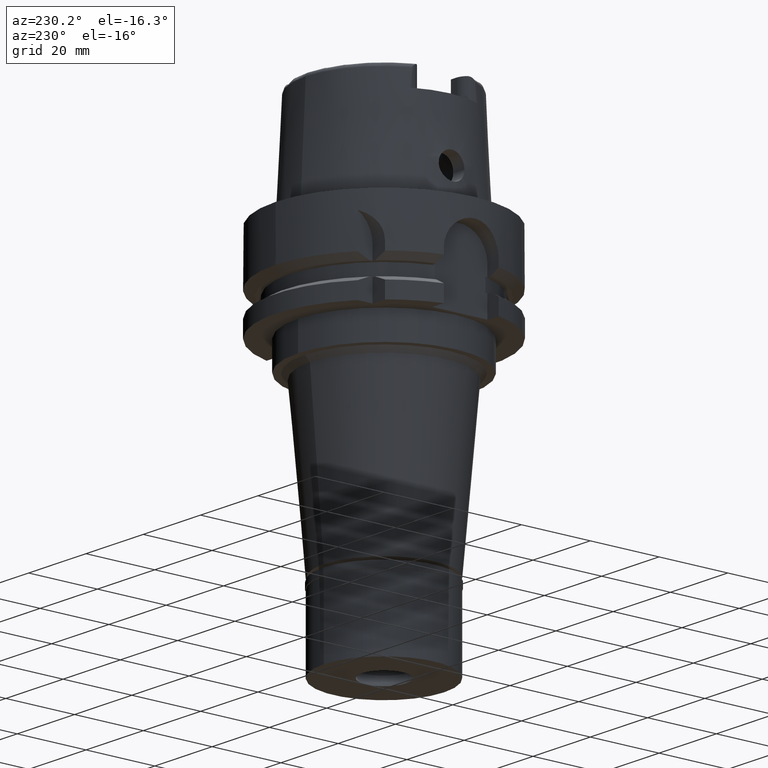
[diagram: clean part render]
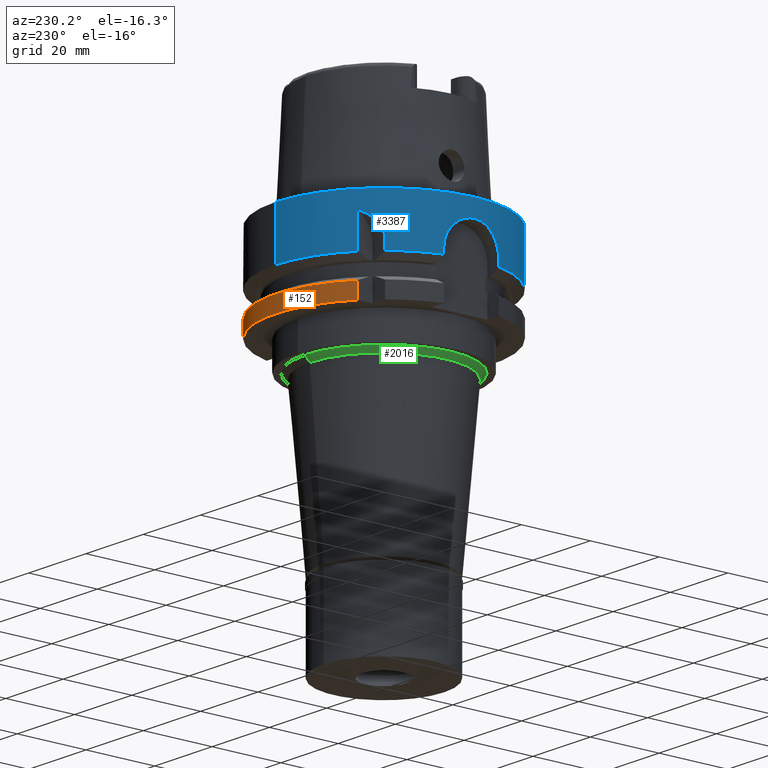
[diagram: same view with three faces highlighted in distinct colors, each labeled with its STEP entity id]
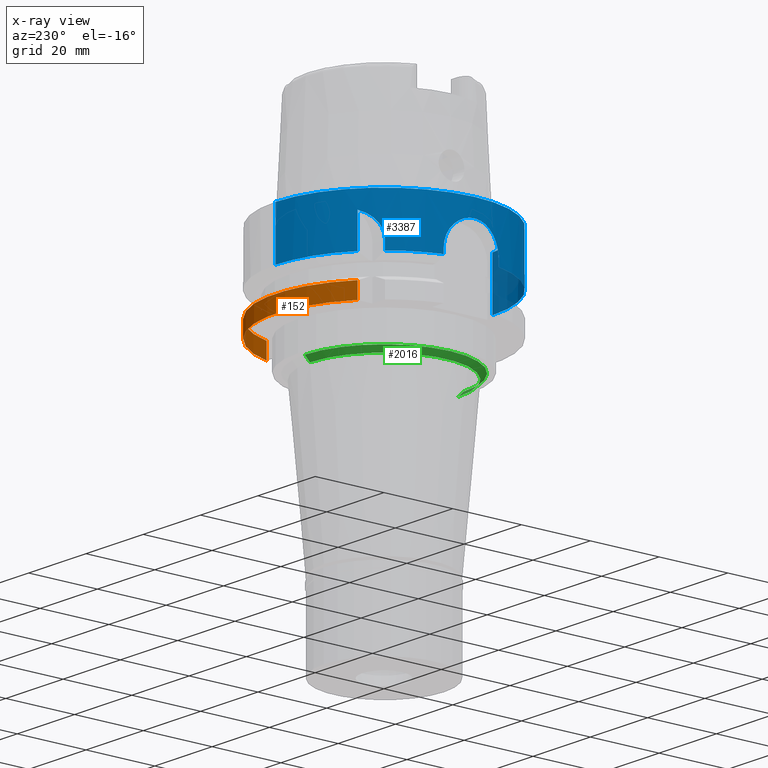
[diagram: x-ray of the same camera — body ghosted, the three highlighted faces saturated]
A machine part, auxiliary view with three faces highlighted in distinct colors.
The next image is the same camera in x-ray (body ghosted, the three faces saturated) — at least one of them is partly hidden behind the body in this view.
Their STEP definitions:

[orange] entity #152 — the highlighted cylindrical surface (partial cylindrical patch) has radius 31.5 mm, axis along (0, 0, 1).
#58 = EDGE_CURVE ( 'NONE', #61, #1139, #3639, .T. ) ;
#61 = VERTEX_POINT ( 'NONE', #4322 ) ;
#90 = CARTESIAN_POINT ( 'NONE',  ( -20.00001377820999693, 24.33617572402999940, -21.37754845249999747 ) ) ;
#152 = ADVANCED_FACE ( 'NONE', ( #1501 ), #3153, .T. ) ;
#477 = AXIS2_PLACEMENT_3D ( 'NONE', #2296, #3184, #3981 ) ;
#559 = CARTESIAN_POINT ( 'NONE',  ( -20.00000000000000000, 24.33618704727999926, -26.00000000000000000 ) ) ;
#766 = ORIENTED_EDGE ( 'NONE', *, *, #818, .T. ) ;
#818 = EDGE_CURVE ( 'NONE', #2027, #1139, #1994, .T. ) ;
#860 = CARTESIAN_POINT ( 'NONE',  ( -20.00000000000000000, 24.33618327286396621, -24.45918281749999679 ) ) ;
#937 = AXIS2_PLACEMENT_3D ( 'NONE', #3058, #1876, #3619 ) ;
#1070 = EDGE_CURVE ( 'NONE', #61, #4979, #1910, .T. ) ;
#1139 = VERTEX_POINT ( 'NONE', #1801 ) ;
#1501 = FACE_OUTER_BOUND ( 'NONE', #2887, .T. ) ;
#1590 = DIRECTION ( 'NONE',  ( -0.6349206349206079070, 0.7725773665802099233, 0.0000000000000000000 ) ) ;
#1801 = CARTESIAN_POINT ( 'NONE',  ( -20.00000000000000000, 24.33618704727999926, -26.00000000000000000 ) ) ;
#1876 = DIRECTION ( 'NONE',  ( 0.0000000000000000000, 0.0000000000000000000, 1.000000000000000000 ) ) ;
#1910 = CIRCLE ( 'NONE', #2600, 31.50000000000000711 ) ;
#1927 = CARTESIAN_POINT ( 'NONE',  ( 30.18691748977999723, 9.000000692501998856, -21.37750466033000052 ) ) ;
#1994 = CIRCLE ( 'NONE', #937, 31.50000000000000000 ) ;
#2027 = VERTEX_POINT ( 'NONE', #3061 ) ;
#2240 = ORIENTED_EDGE ( 'NONE', *, *, #58, .F. ) ;
#2296 = CARTESIAN_POINT ( 'NONE',  ( 0.0000000000000000000, 0.0000000000000000000, 0.0000000000000000000 ) ) ;
#2600 = AXIS2_PLACEMENT_3D ( 'NONE', #3225, #5393, #1590 ) ;
#2749 = ORIENTED_EDGE ( 'NONE', *, *, #4427, .F. ) ;
#2877 = DIRECTION ( 'NONE',  ( -4.466501118554943944E-08, 1.498112946369981561E-07, 0.9999999999999876765 ) ) ;
#2887 = EDGE_LOOP ( 'NONE', ( #3079, #2749, #766, #2240 ) ) ;
#3058 = CARTESIAN_POINT ( 'NONE',  ( 0.0000000000000000000, 0.0000000000000000000, -26.00000000000000000 ) ) ;
#3061 = CARTESIAN_POINT ( 'NONE',  ( 30.18691769625000276, 9.000000000000000000, -26.00000000000000000 ) ) ;
#3079 = ORIENTED_EDGE ( 'NONE', *, *, #1070, .T. ) ;
#3153 = CYLINDRICAL_SURFACE ( 'NONE', #477, 31.50000000000000000 ) ;
#3184 = DIRECTION ( 'NONE',  ( 0.0000000000000000000, 0.0000000000000000000, 1.000000000000000000 ) ) ;
#3225 = CARTESIAN_POINT ( 'NONE',  ( 0.0000000000000000000, 0.0000000000000000000, -21.37749907476000288 ) ) ;
#3619 = DIRECTION ( 'NONE',  ( 0.0000000000000000000, 1.000000000000000000, 0.0000000000000000000 ) ) ;
#3639 = B_SPLINE_CURVE_WITH_KNOTS ( 'NONE', 3,
 ( #90, #4736, #860, #559 ),
 .UNSPECIFIED., .F., .F.,
 ( 4, 4 ),
 ( 0.0000000000000000000, 1.000000000000000000 ),
 .UNSPECIFIED. ) ;
#3981 = DIRECTION ( 'NONE',  ( 0.0000000000000000000, 1.000000000000000000, 0.0000000000000000000 ) ) ;
#4038 = CARTESIAN_POINT ( 'NONE',  ( 30.18691769625000276, 9.000000000000000000, -26.00000000000000000 ) ) ;
#4117 = LINE ( 'NONE', #4038, #4134 ) ;
#4134 = VECTOR ( 'NONE', #2877, 1000.000000000000114 ) ;
#4322 = CARTESIAN_POINT ( 'NONE',  ( -20.00001377820999693, 24.33617572402999940, -21.37754845249999747 ) ) ;
#4427 = EDGE_CURVE ( 'NONE', #2027, #4979, #4117, .T. ) ;
#4736 = CARTESIAN_POINT ( 'NONE',  ( -20.00000000000000000, 24.33617949844698458, -22.91836563500000068 ) ) ;
#4979 = VERTEX_POINT ( 'NONE', #1927 ) ;
#5393 = DIRECTION ( 'NONE',  ( 0.0000000000000000000, 0.0000000000000000000, -1.000000000000000000 ) ) ;

[blue] entity #3387 — the highlighted cylindrical surface (partial cylindrical patch) has radius 31.5 mm, axis along (0, 0, 1).
#9 = CARTESIAN_POINT ( 'NONE',  ( 0.0000000000000000000, -31.50000000000000000, -14.62250092523999889 ) ) ;
#27 = CARTESIAN_POINT ( 'NONE',  ( -31.12245719726680093, -4.866787956074039023, -6.645079909400829266 ) ) ;
#37 = DIRECTION ( 'NONE',  ( -1.628700928634991865E-08, -6.202315639437978003E-08, -0.9999999999999980016 ) ) ;
#50 = AXIS2_PLACEMENT_3D ( 'NONE', #991, #2252, #5315 ) ;
#66 = VECTOR ( 'NONE', #4347, 1000.000000000000000 ) ;
#102 = EDGE_CURVE ( 'NONE', #1838, #2346, #4056, .T. ) ;
#173 = CARTESIAN_POINT ( 'NONE',  ( -20.00000000000000000, 24.33618704727999926, -5.000000000001000089 ) ) ;
#200 = CARTESIAN_POINT ( 'NONE',  ( -23.69378235062319149, 20.75730693223430734, -8.709620729066509526 ) ) ;
#238 = VERTEX_POINT ( 'NONE', #4540 ) ;
#281 = CARTESIAN_POINT ( 'NONE',  ( -22.42282341165946846, 22.12411074930098565, -6.681966651694929205 ) ) ;
#288 = EDGE_CURVE ( 'NONE', #2346, #4827, #5351, .T. ) ;
#306 = CARTESIAN_POINT ( 'NONE',  ( -31.44966182429120138, 1.798311609534588351, -5.200423058021766742 ) ) ;
#334 = CARTESIAN_POINT ( 'NONE',  ( -31.10597419837395705, 4.967807807777044005, -6.727903275435365593 ) ) ;
#366 = CARTESIAN_POINT ( 'NONE',  ( -30.66617587512583043, 7.202629446171626704, -9.478638014006163459 ) ) ;
#369 = VERTEX_POINT ( 'NONE', #3868 ) ;
#376 = CARTESIAN_POINT ( 'NONE',  ( -20.00000000000000000, 24.33618704727999926, -5.000000000001000089 ) ) ;
#385 = CARTESIAN_POINT ( 'NONE',  ( -31.30329634981656639, -3.522529521366312366, -5.812388975414772396 ) ) ;
#414 = CARTESIAN_POINT ( 'NONE',  ( -30.47046936434526287, 7.987562727870276547, -12.48389887869858228 ) ) ;
#439 = CARTESIAN_POINT ( 'NONE',  ( -31.20242024745796172, -4.321054262826401704, -6.266095709814027082 ) ) ;
#444 = VERTEX_POINT ( 'NONE', #4590 ) ;
#490 = CARTESIAN_POINT ( 'NONE',  ( -24.33618953147999875, 19.99999697720000214, -14.62251175989000096 ) ) ;
#502 = CARTESIAN_POINT ( 'NONE',  ( -24.23755181296511907, 20.11957536446044159, -10.72281759680524971 ) ) ;
#520 = ORIENTED_EDGE ( 'NONE', *, *, #3964, .T. ) ;
#528 = CARTESIAN_POINT ( 'NONE',  ( -30.51876164595472574, -7.801142564629041765, -11.20858455538009046 ) ) ;
#614 = CIRCLE ( 'NONE', #3427, 31.50000000000000000 ) ;
#674 = CARTESIAN_POINT ( 'NONE',  ( -22.13990552091419062, 22.40702674288545282, -6.391681059372950280 ) ) ;
#697 = EDGE_CURVE ( 'NONE', #5384, #1838, #2578, .T. ) ;
#746 = EDGE_CURVE ( 'NONE', #5384, #4592, #2693, .T. ) ;
#758 = CARTESIAN_POINT ( 'NONE',  ( -30.95339424955330898, 5.845829516478184829, -7.532370027206814811 ) ) ;
#783 = CARTESIAN_POINT ( 'NONE',  ( -31.49999289744041064, -0.2605192614558345388, -5.000026923804298917 ) ) ;
#809 = CARTESIAN_POINT ( 'NONE',  ( -31.32884444780465572, 3.281439838084335037, -5.702789551189129114 ) ) ;
#832 = CARTESIAN_POINT ( 'NONE',  ( -31.24778516539587159, 3.985035518564020496, -6.058131600150521656 ) ) ;
#856 = CARTESIAN_POINT ( 'NONE',  ( -30.72496487600236392, -6.945680446835005739, -9.021595561511116301 ) ) ;
#883 = CARTESIAN_POINT ( 'NONE',  ( 0.0000000000000000000, -31.50000000000000000, 0.0000000000000000000 ) ) ;
#978 = VERTEX_POINT ( 'NONE', #1104 ) ;
#991 = CARTESIAN_POINT ( 'NONE',  ( 0.0000000000000000000, 0.0000000000000000000, -14.62250092523999889 ) ) ;
#1010 = CIRCLE ( 'NONE', #3478, 31.50000000000000000 ) ;
#1015 = CARTESIAN_POINT ( 'NONE',  ( -20.00001377493000021, 24.33617572673000140, -14.62245154170999939 ) ) ;
#1025 = CARTESIAN_POINT ( 'NONE',  ( -24.33618953147999875, 19.99999697720000214, -14.62251175989000096 ) ) ;
#1031 = CARTESIAN_POINT ( 'NONE',  ( -22.11654899248160788, 22.43007941135832795, -6.369228008395599439 ) ) ;
#1046 = FACE_OUTER_BOUND ( 'NONE', #1921, .T. ) ;
#1091 = CARTESIAN_POINT ( 'NONE',  ( -22.22049073799695407, 22.32720105525508458, -6.470536368740974709 ) ) ;
#1104 = CARTESIAN_POINT ( 'NONE',  ( -30.46719534836999799, -8.000000475258000066, -14.62249661090999986 ) ) ;
#1167 = CARTESIAN_POINT ( 'NONE',  ( -30.57233659845883977, 7.588686656457142021, -10.45426432969273378 ) ) ;
#1193 = CARTESIAN_POINT ( 'NONE',  ( -31.37653858702547893, 2.796769158684890400, -5.500265141537504121 ) ) ;
#1218 = CARTESIAN_POINT ( 'NONE',  ( -31.39671527135514495, -2.551756247920768494, -5.416712190212658484 ) ) ;
#1240 = CARTESIAN_POINT ( 'NONE',  ( -31.21806995169349008, 4.210859599592639668, -6.192815206136389250 ) ) ;
#1256 = DIRECTION ( 'NONE',  ( 9.894060569838856819E-07, 1.203919407603981730E-06, 0.9999999999987858601 ) ) ;
#1264 = CARTESIAN_POINT ( 'NONE',  ( -30.91893244297369137, 6.024849328295651674, -7.730129281958026510 ) ) ;
#1291 = CARTESIAN_POINT ( 'NONE',  ( -31.05571320556486725, -5.275949611093288638, -6.980403696092781551 ) ) ;
#1295 = CARTESIAN_POINT ( 'NONE',  ( -24.33618704727999926, 20.00000000000000000, -12.11171390365999834 ) ) ;
#1343 = EDGE_CURVE ( 'NONE', #4013, #444, #3256, .T. ) ;
#1348 = CARTESIAN_POINT ( 'NONE',  ( -30.46719547316396870, -8.000000000001023182, -12.48317006934387585 ) ) ;
#1410 = EDGE_CURVE ( 'NONE', #5247, #3741, #3483, .T. ) ;
#1422 = CYLINDRICAL_SURFACE ( 'NONE', #4391, 31.50000000000000000 ) ;
#1435 = CARTESIAN_POINT ( 'NONE',  ( -20.81481333261101341, 23.66655599043625813, -5.344980545176353459 ) ) ;
#1450 = DIRECTION ( 'NONE',  ( 0.0000000000000000000, 0.0000000000000000000, 1.000000000000000000 ) ) ;
#1458 = VECTOR ( 'NONE', #1256, 1000.000000000000000 ) ;
#1528 = DIRECTION ( 'NONE',  ( 0.0000000000000000000, 0.0000000000000000000, 1.000000000000000000 ) ) ;
#1631 = CARTESIAN_POINT ( 'NONE',  ( -30.46719547316000032, 8.000000000000000000, -13.00000000000000000 ) ) ;
#1656 = CARTESIAN_POINT ( 'NONE',  ( -30.46719547316398646, 8.000000000001037392, -12.74141169851611721 ) ) ;
#1711 = CARTESIAN_POINT ( 'NONE',  ( -30.91857318719439363, -6.036445372316029179, -7.723293636608659085 ) ) ;
#1741 = CARTESIAN_POINT ( 'NONE',  ( -30.48036059509011508, -7.950356523976275902, -11.97071246685688806 ) ) ;
#1751 = CARTESIAN_POINT ( 'NONE',  ( -30.46719547316000032, 8.000000000000000000, -13.00000000000000000 ) ) ;
#1774 = CARTESIAN_POINT ( 'NONE',  ( -24.14684262426480998, 20.22822477512563921, -10.21398258185091024 ) ) ;
#1816 = EDGE_CURVE ( 'NONE', #978, #444, #3779, .T. ) ;
#1838 = VERTEX_POINT ( 'NONE', #4974 ) ;
#1857 = CARTESIAN_POINT ( 'NONE',  ( 0.0000000000000000000, 31.50000000000000000, 0.0000000000000000000 ) ) ;
#1885 = CARTESIAN_POINT ( 'NONE',  ( -23.53685168013636542, 20.93493527650296571, -8.356951744155907136 ) ) ;
#1921 = EDGE_LOOP ( 'NONE', ( #3816, #5021, #4092, #2253, #2187, #3173, #520, #3240, #2323, #3126, #2912, #2349 ) ) ;
#1958 = EDGE_CURVE ( 'NONE', #238, #4827, #1010, .T. ) ;
#1969 = CARTESIAN_POINT ( 'NONE',  ( -23.93461104867942524, 20.47968988056373263, -9.360297831436831473 ) ) ;
#1974 = DIRECTION ( 'NONE',  ( -0.9672125547036138915, -0.2539682539683034701, 0.0000000000000000000 ) ) ;
#1996 = CARTESIAN_POINT ( 'NONE',  ( -31.48718059661122837, 1.033475740137585586, -5.050046565198228699 ) ) ;
#2022 = CARTESIAN_POINT ( 'NONE',  ( -31.48408245245744297, -1.033846574554016629, -5.062798261228511620 ) ) ;
#2049 = CARTESIAN_POINT ( 'NONE',  ( -31.49677512529969903, -0.5190792994887473144, -5.012591775769399405 ) ) ;
#2073 = CARTESIAN_POINT ( 'NONE',  ( -30.51893315439571808, 7.800474451156758526, -11.20536184592949347 ) ) ;
#2100 = CARTESIAN_POINT ( 'NONE',  ( -31.17125852457936475, 4.540368874102139962, -6.412031945349154327 ) ) ;
#2129 = CARTESIAN_POINT ( 'NONE',  ( -30.85032145203767939, -6.371615249534635872, -8.133429115957653721 ) ) ;
#2183 = CARTESIAN_POINT ( 'NONE',  ( -24.19527956968729754, 20.17031545704069018, -10.46745987686011503 ) ) ;
#2187 = ORIENTED_EDGE ( 'NONE', *, *, #1343, .T. ) ;
#2203 = DIRECTION ( 'NONE',  ( 0.0000000000000000000, 0.0000000000000000000, 1.000000000000000000 ) ) ;
#2252 = DIRECTION ( 'NONE',  ( 0.0000000000000000000, 0.0000000000000000000, 1.000000000000000000 ) ) ;
#2253 = ORIENTED_EDGE ( 'NONE', *, *, #3687, .F. ) ;
#2323 = ORIENTED_EDGE ( 'NONE', *, *, #5092, .T. ) ;
#2346 = VERTEX_POINT ( 'NONE', #376 ) ;
#2349 = ORIENTED_EDGE ( 'NONE', *, *, #288, .F. ) ;
#2366 = CARTESIAN_POINT ( 'NONE',  ( -21.51725636792768270, 23.02046004033381621, -5.798395461353816671 ) ) ;
#2389 = CARTESIAN_POINT ( 'NONE',  ( -30.72362680542135038, 6.956926099389389329, -9.014865801447337290 ) ) ;
#2398 = DIRECTION ( 'NONE',  ( 0.0000000000000000000, 0.0000000000000000000, -1.000000000000000000 ) ) ;
#2416 = CARTESIAN_POINT ( 'NONE',  ( -31.28953998201770048, 3.637077696510422786, -5.873297521405675958 ) ) ;
#2426 = CIRCLE ( 'NONE', #2890, 31.50000000000000000 ) ;
#2446 = CARTESIAN_POINT ( 'NONE',  ( -31.42616278188021539, -2.180628401364822277, -5.295126509332736653 ) ) ;
#2472 = CARTESIAN_POINT ( 'NONE',  ( -30.46719534836999799, -8.000000475258000066, -14.62249661090999986 ) ) ;
#2477 = CARTESIAN_POINT ( 'NONE',  ( -31.32926175612021069, -3.284441417846847511, -5.700583273905581727 ) ) ;
#2488 = DIRECTION ( 'NONE',  ( 0.0000000000000000000, -1.000000000000000000, 0.0000000000000000000 ) ) ;
#2536 = CARTESIAN_POINT ( 'NONE',  ( -31.24713681681722832, -3.984897501304583312, -6.061802170373098875 ) ) ;
#2559 = DIRECTION ( 'NONE',  ( 0.0000000000000000000, -2.672583210395999918E-14, -1.000000000000000000 ) ) ;
#2578 = LINE ( 'NONE', #490, #1458 ) ;
#2592 = CARTESIAN_POINT ( 'NONE',  ( -24.31739938360097497, 20.02303739605130772, -11.41221535958003663 ) ) ;
#2618 = CARTESIAN_POINT ( 'NONE',  ( -30.57222014968889923, -7.589155089353680772, -10.45566941638133507 ) ) ;
#2647 = CARTESIAN_POINT ( 'NONE',  ( 0.0000000000000000000, -31.50000000000000000, 0.0000000000000000000 ) ) ;
#2693 = CIRCLE ( 'NONE', #50, 31.50000000000000711 ) ;
#2716 = CARTESIAN_POINT ( 'NONE',  ( -23.42282105971236561, 21.06232378565220387, -8.128107010674932909 ) ) ;
#2746 = CARTESIAN_POINT ( 'NONE',  ( -22.12365065708123524, 22.42307461635802213, -6.376033572625946277 ) ) ;
#2773 = CARTESIAN_POINT ( 'NONE',  ( -23.75772248649901641, 20.68403774231243375, -8.870103976812400148 ) ) ;
#2852 = CARTESIAN_POINT ( 'NONE',  ( -30.85175633428337960, 6.359899679385018878, -8.139651759944456444 ) ) ;
#2879 = CARTESIAN_POINT ( 'NONE',  ( -20.00000000000000000, 24.33618704727589588, 0.0000000000000000000 ) ) ;
#2890 = AXIS2_PLACEMENT_3D ( 'NONE', #4600, #1528, #1974 ) ;
#2905 = CARTESIAN_POINT ( 'NONE',  ( -31.37578633306639020, -2.797359783995034821, -5.503888911969250231 ) ) ;
#2912 = ORIENTED_EDGE ( 'NONE', *, *, #1958, .T. ) ;
#2930 = CARTESIAN_POINT ( 'NONE',  ( -31.05592043737171437, 5.274730966343901706, -6.979333167998830412 ) ) ;
#2956 = CARTESIAN_POINT ( 'NONE',  ( -31.43404276894120386, 2.052659527317886035, -5.263366927176994281 ) ) ;
#2976 = CARTESIAN_POINT ( 'NONE',  ( 0.0000000000000000000, 0.0000000000000000000, -14.62250092523999889 ) ) ;
#2980 = CARTESIAN_POINT ( 'NONE',  ( -31.15515541103103203, -4.653648920961162005, -6.487460649499388943 ) ) ;
#2981 = CARTESIAN_POINT ( 'NONE',  ( -30.53478168034419582, -7.738412471884907440, -10.95403629003705070 ) ) ;
#2990 = LINE ( 'NONE', #1751, #3508 ) ;
#3009 = CARTESIAN_POINT ( 'NONE',  ( -24.33618704728000637, 20.00000000000000711, -11.76143503008205471 ) ) ;
#3029 = VECTOR ( 'NONE', #3755, 1000.000000000000227 ) ;
#3042 = CARTESIAN_POINT ( 'NONE',  ( -24.26103639256389144, 20.09123961569170191, -10.89441491282532226 ) ) ;
#3066 = CARTESIAN_POINT ( 'NONE',  ( -30.46719547316000032, -8.000000000000000000, -13.00000000000000000 ) ) ;
#3098 = CARTESIAN_POINT ( 'NONE',  ( -24.03262762953693965, 20.36408952883833834, -9.698778667879587090 ) ) ;
#3122 = CARTESIAN_POINT ( 'NONE',  ( -23.47110503767037315, 21.00852691522635141, -8.222930559040365850 ) ) ;
#3126 = ORIENTED_EDGE ( 'NONE', *, *, #4254, .T. ) ;
#3173 = ORIENTED_EDGE ( 'NONE', *, *, #1816, .F. ) ;
#3211 = CARTESIAN_POINT ( 'NONE',  ( -23.59040622408590693, 20.87450958103633525, -8.473706688181136926 ) ) ;
#3240 = ORIENTED_EDGE ( 'NONE', *, *, #1410, .F. ) ;
#3256 = B_SPLINE_CURVE_WITH_KNOTS ( 'NONE', 3,
 ( #1631, #1656, #414, #3264, #5005, #2073, #3368, #1167, #3347, #366, #2389, #4570, #2852, #1264, #758, #4173, #2930, #334, #3294, #4090, #2100, #1240, #832, #2416, #5061, #809, #4626, #1193, #4120, #2956, #306, #1996, #5378, #783, #2049, #2022, #3715, #5407, #2446, #1218, #2905, #4599, #2477, #385, #3760, #2536, #3396, #439, #2980, #27, #1291, #3811, #1711, #2129, #5095, #856, #4228, #4790, #4318, #2618, #2981, #528, #1741, #1348, #3066 ),
 .UNSPECIFIED., .F., .F.,
 ( 4, 2, 2, 2, 2, 2, 2, 2, 2, 2, 2, 2, 2, 2, 2, 2, 2, 2, 2, 1, 2, 2, 2, 2, 2, 2, 2, 2, 2, 2, 2, 2, 4 ),
 ( 0.0000000000000000000, 0.03124999999999997224, 0.06249999999999994449, 0.09374999999999991673, 0.1249999999999998890, 0.1874999999999998057, 0.2187499999999998890, 0.2500000000000000000, 0.2812500000000000555, 0.2968750000000001110, 0.3125000000000001665, 0.3437500000000002220, 0.3593750000000002220, 0.3750000000000002220, 0.4062500000000001665, 0.4375000000000001665, 0.5000000000000001110, 0.5312500000000001110, 0.5625000000000000000, 0.5937500000000000000, 0.6093750000000000000, 0.6250000000000000000, 0.6562499999999998890, 0.6718749999999998890, 0.6874999999999997780, 0.7187499999999997780, 0.7499999999999997780, 0.8124999999999998890, 0.8437499999999998890, 0.8749999999999998890, 0.9062499999999998890, 0.9374999999999997780, 1.000000000000000000 ),
 .UNSPECIFIED. ) ;
#3264 = CARTESIAN_POINT ( 'NONE',  ( -30.48347349200445677, 7.937789709826467366, -11.97102420239621168 ) ) ;
#3288 = VECTOR ( 'NONE', #2559, 1000.000000000000000 ) ;
#3294 = CARTESIAN_POINT ( 'NONE',  ( -31.12248983947012348, 4.863358306369471862, -6.646602164951598724 ) ) ;
#3312 = VECTOR ( 'NONE', #3686, 1000.000000000000000 ) ;
#3347 = CARTESIAN_POINT ( 'NONE',  ( -30.59375289132900022, 7.502188844600671480, -10.20961931647805798 ) ) ;
#3368 = CARTESIAN_POINT ( 'NONE',  ( -30.53486720067081350, 7.738075684351631622, -10.95273669261678151 ) ) ;
#3387 = ADVANCED_FACE ( 'NONE', ( #1046 ), #1422, .T. ) ;
#3396 = CARTESIAN_POINT ( 'NONE',  ( -31.21750923799495681, -4.210710666917980127, -6.196542798051132728 ) ) ;
#3427 = AXIS2_PLACEMENT_3D ( 'NONE', #3723, #2398, #2488 ) ;
#3458 = CARTESIAN_POINT ( 'NONE',  ( -24.12922918956571294, 20.24921916685458001, -10.12997961463642227 ) ) ;
#3478 = AXIS2_PLACEMENT_3D ( 'NONE', #2976, #2203, #4674 ) ;
#3483 = LINE ( 'NONE', #2647, #3288 ) ;
#3508 = VECTOR ( 'NONE', #37, 1000.000000000000000 ) ;
#3575 = CARTESIAN_POINT ( 'NONE',  ( -23.41383396518895310, 21.07231654906985696, -8.110744566082036755 ) ) ;
#3604 = CARTESIAN_POINT ( 'NONE',  ( -22.33116271090877802, 22.21675606967029282, -6.582853157691396895 ) ) ;
#3658 = CARTESIAN_POINT ( 'NONE',  ( -22.16422112936536593, 22.38299474293508240, -6.415212143697866409 ) ) ;
#3686 = DIRECTION ( 'NONE',  ( -0.0000000000000000000, -0.0000000000000000000, -1.000000000000000000 ) ) ;
#3687 = EDGE_CURVE ( 'NONE', #4013, #4592, #2990, .T. ) ;
#3715 = CARTESIAN_POINT ( 'NONE',  ( -31.47467719722998325, -1.288635796012105095, -5.100160804244280754 ) ) ;
#3723 = CARTESIAN_POINT ( 'NONE',  ( 0.0000000000000000000, 0.0000000000000000000, 0.0000000000000000000 ) ) ;
#3741 = VERTEX_POINT ( 'NONE', #9 ) ;
#3755 = DIRECTION ( 'NONE',  ( -7.691239816547649744E-08, 2.929173976247864697E-07, 0.9999999999999540368 ) ) ;
#3760 = CARTESIAN_POINT ( 'NONE',  ( -31.26152930267402041, -3.870456020469371428, -5.997298722305189678 ) ) ;
#3779 = LINE ( 'NONE', #2472, #3029 ) ;
#3811 = CARTESIAN_POINT ( 'NONE',  ( -31.02184472236075408, -5.471001753605185591, -7.157136256373180849 ) ) ;
#3816 = ORIENTED_EDGE ( 'NONE', *, *, #102, .F. ) ;
#3868 = CARTESIAN_POINT ( 'NONE',  ( 0.0000000000000000000, 31.50000000000000000, 0.0000000000000000000 ) ) ;
#3872 = CARTESIAN_POINT ( 'NONE',  ( -24.17238210457848524, 20.19774409071592558, -10.34029033770483963 ) ) ;
#3940 = CARTESIAN_POINT ( 'NONE',  ( -30.46719549959000162, 7.999999899367999490, -14.62250183877000076 ) ) ;
#3952 = CARTESIAN_POINT ( 'NONE',  ( -23.23273074194696974, 21.27338265816705132, -7.764950729943016938 ) ) ;
#3964 = EDGE_CURVE ( 'NONE', #978, #3741, #2426, .T. ) ;
#4013 = VERTEX_POINT ( 'NONE', #4521 ) ;
#4056 = B_SPLINE_CURVE_WITH_KNOTS ( 'NONE', 3,
 ( #1295, #3009, #2592, #3042, #502, #2183, #3872, #1774, #3458, #4066, #3098, #1969, #2773, #200, #3211, #1885, #3122, #5299, #2716, #3575, #3952, #5271, #4846, #4490, #281, #3604, #1091, #3658, #674, #2746, #1031, #2366, #1435, #173 ),
 .UNSPECIFIED., .F., .F.,
 ( 4, 2, 2, 1, 2, 2, 2, 2, 1, 1, 2, 2, 2, 2, 1, 1, 1, 2, 2, 4 ),
 ( 0.0000000000000000000, 0.1249999999999981404, 0.1874999999999975853, 0.2187499999999971134, 0.2343749999999968636, 0.2499999999999966138, 0.3749999999999957256, 0.4374999999999951705, 0.4687499999999948930, 0.4843749999999952260, 0.4921874999999951150, 0.4999999999999950040, 0.6249999999999942268, 0.6874999999999938938, 0.7187499999999938938, 0.7343749999999937828, 0.7421874999999940048, 0.7460937499999945599, 0.7499999999999951150, 1.000000000000000000 ),
 .UNSPECIFIED. ) ;
#4066 = CARTESIAN_POINT ( 'NONE',  ( -24.12049851483102003, 20.25961390236335902, -10.08972362107126841 ) ) ;
#4090 = CARTESIAN_POINT ( 'NONE',  ( -31.15505701797506788, 4.650166666989047570, -6.489017651392170905 ) ) ;
#4092 = ORIENTED_EDGE ( 'NONE', *, *, #746, .T. ) ;
#4120 = CARTESIAN_POINT ( 'NONE',  ( -31.39751750560794363, 2.551146883218541994, -5.413142201694192579 ) ) ;
#4173 = CARTESIAN_POINT ( 'NONE',  ( -31.02187808113702872, 5.470778612142692232, -7.156988511190683688 ) ) ;
#4228 = CARTESIAN_POINT ( 'NONE',  ( -30.66829496329702565, -7.191774992679877521, -9.485896381865396521 ) ) ;
#4254 = EDGE_CURVE ( 'NONE', #369, #238, #5298, .T. ) ;
#4318 = CARTESIAN_POINT ( 'NONE',  ( -30.59373723261226985, -7.502244466330298955, -10.20989398916889535 ) ) ;
#4347 = DIRECTION ( 'NONE',  ( 0.0000000000000000000, 2.672583210395999918E-14, -1.000000000000000000 ) ) ;
#4391 = AXIS2_PLACEMENT_3D ( 'NONE', #4803, #1450, #4989 ) ;
#4490 = CARTESIAN_POINT ( 'NONE',  ( -22.60187682607207194, 21.94168555301713397, -6.883928054154604403 ) ) ;
#4521 = CARTESIAN_POINT ( 'NONE',  ( -30.46719547316000032, 8.000000000000000000, -13.00000000000000000 ) ) ;
#4540 = CARTESIAN_POINT ( 'NONE',  ( 0.0000000000000000000, 31.50000000000000000, -14.62250092523999889 ) ) ;
#4570 = CARTESIAN_POINT ( 'NONE',  ( -30.81885551309213511, 6.516951823586189185, -8.352437154013387044 ) ) ;
#4590 = CARTESIAN_POINT ( 'NONE',  ( -30.46719547316000032, -8.000000000000000000, -13.00000000000000000 ) ) ;
#4592 = VERTEX_POINT ( 'NONE', #3940 ) ;
#4599 = CARTESIAN_POINT ( 'NONE',  ( -31.36478212464035309, -2.918131538593208063, -5.550075916268425225 ) ) ;
#4600 = CARTESIAN_POINT ( 'NONE',  ( 0.0000000000000000000, 0.0000000000000000000, -14.62250092523999889 ) ) ;
#4626 = CARTESIAN_POINT ( 'NONE',  ( -31.34136359326490506, 3.159699506644057632, -5.649302505179529810 ) ) ;
#4674 = DIRECTION ( 'NONE',  ( 0.0000000000000000000, 1.000000000000000000, 0.0000000000000000000 ) ) ;
#4790 = CARTESIAN_POINT ( 'NONE',  ( -30.64173994537016910, -7.303711591445617657, -9.725159153974843207 ) ) ;
#4803 = CARTESIAN_POINT ( 'NONE',  ( 0.0000000000000000000, 0.0000000000000000000, 0.0000000000000000000 ) ) ;
#4827 = VERTEX_POINT ( 'NONE', #1015 ) ;
#4846 = CARTESIAN_POINT ( 'NONE',  ( -22.71555511956211859, 21.82388934614423803, -7.023550805667640340 ) ) ;
#4974 = CARTESIAN_POINT ( 'NONE',  ( -24.33618704727999926, 20.00000000000000000, -12.11171390365999834 ) ) ;
#4989 = DIRECTION ( 'NONE',  ( 0.0000000000000000000, 1.000000000000000000, 0.0000000000000000000 ) ) ;
#5005 = CARTESIAN_POINT ( 'NONE',  ( -30.49311663444910181, 7.900792394659328366, -11.71739009625630601 ) ) ;
#5021 = ORIENTED_EDGE ( 'NONE', *, *, #697, .F. ) ;
#5061 = CARTESIAN_POINT ( 'NONE',  ( -31.30298826463103623, 3.519555021601332712, -5.814551383529719786 ) ) ;
#5092 = EDGE_CURVE ( 'NONE', #5247, #369, #614, .T. ) ;
#5095 = CARTESIAN_POINT ( 'NONE',  ( -30.75521212177036290, -6.810975039628981875, -8.795221607784704076 ) ) ;
#5247 = VERTEX_POINT ( 'NONE', #883 ) ;
#5271 = CARTESIAN_POINT ( 'NONE',  ( -23.03951805167712052, 21.48332356735406989, -7.456833201218234564 ) ) ;
#5298 = LINE ( 'NONE', #1857, #66 ) ;
#5299 = CARTESIAN_POINT ( 'NONE',  ( -23.44222797492961519, 21.04071874343883763, -8.165971955047327313 ) ) ;
#5315 = DIRECTION ( 'NONE',  ( -0.7725773665802099233, 0.6349206349206079070, 0.0000000000000000000 ) ) ;
#5351 = LINE ( 'NONE', #2879, #3312 ) ;
#5378 = CARTESIAN_POINT ( 'NONE',  ( -31.50001416988314062, 0.5184579006104341747, -4.999947540202382079 ) ) ;
#5384 = VERTEX_POINT ( 'NONE', #1025 ) ;
#5407 = CARTESIAN_POINT ( 'NONE',  ( -31.44949749568556996, -1.801386730677229986, -5.201079033717721067 ) ) ;

[green] entity #2016 — the highlighted conical surface has half-angle 45 deg.
#26 = EDGE_CURVE ( 'NONE', #1950, #5068, #390, .T. ) ;
#57 = DIRECTION ( 'NONE',  ( 0.0000000000000000000, -1.000000000000000000, 0.0000000000000000000 ) ) ;
#80 = DIRECTION ( 'NONE',  ( 0.0000000000000000000, 0.0000000000000000000, 1.000000000000000000 ) ) ;
#390 = CIRCLE ( 'NONE', #922, 23.04197625490000334 ) ;
#443 = DIRECTION ( 'NONE',  ( 0.0000000000000000000, -0.7071067811866975639, -0.7071067811863974706 ) ) ;
#464 = CARTESIAN_POINT ( 'NONE',  ( 0.0000000000000000000, -21.54197625489999979, -35.50000000000000000 ) ) ;
#522 = FACE_OUTER_BOUND ( 'NONE', #3962, .T. ) ;
#728 = ORIENTED_EDGE ( 'NONE', *, *, #26, .T. ) ;
#750 = AXIS2_PLACEMENT_3D ( 'NONE', #1705, #80, #5174 ) ;
#904 = EDGE_CURVE ( 'NONE', #5068, #2595, #3914, .T. ) ;
#922 = AXIS2_PLACEMENT_3D ( 'NONE', #3844, #2210, #57 ) ;
#1030 = DIRECTION ( 'NONE',  ( 0.0000000000000000000, 0.7071067811866975639, -0.7071067811863974706 ) ) ;
#1705 = CARTESIAN_POINT ( 'NONE',  ( 0.0000000000000000000, 0.0000000000000000000, -34.75000000000000000 ) ) ;
#1748 = ORIENTED_EDGE ( 'NONE', *, *, #904, .T. ) ;
#1899 = DIRECTION ( 'NONE',  ( 0.0000000000000000000, -1.000000000000000000, 0.0000000000000000000 ) ) ;
#1950 = VERTEX_POINT ( 'NONE', #3891 ) ;
#2016 = ADVANCED_FACE ( 'NONE', ( #522 ), #4980, .T. ) ;
#2210 = DIRECTION ( 'NONE',  ( 0.0000000000000000000, 0.0000000000000000000, -1.000000000000000000 ) ) ;
#2431 = VECTOR ( 'NONE', #1030, 1000.000000000000114 ) ;
#2595 = VERTEX_POINT ( 'NONE', #3742 ) ;
#2700 = DIRECTION ( 'NONE',  ( 0.0000000000000000000, 0.0000000000000000000, -1.000000000000000000 ) ) ;
#2787 = CARTESIAN_POINT ( 'NONE',  ( 0.0000000000000000000, 23.04197625490000334, -34.00000000000000000 ) ) ;
#3048 = VECTOR ( 'NONE', #443, 1000.000000000000114 ) ;
#3222 = CARTESIAN_POINT ( 'NONE',  ( 0.0000000000000000000, 0.0000000000000000000, -35.50000000000000000 ) ) ;
#3304 = CARTESIAN_POINT ( 'NONE',  ( 0.0000000000000000000, 23.04197625490000334, -34.00000000000000000 ) ) ;
#3439 = AXIS2_PLACEMENT_3D ( 'NONE', #3222, #2700, #1899 ) ;
#3512 = LINE ( 'NONE', #4762, #2431 ) ;
#3742 = CARTESIAN_POINT ( 'NONE',  ( 0.0000000000000000000, 21.54197625489999979, -35.50000000000000000 ) ) ;
#3844 = CARTESIAN_POINT ( 'NONE',  ( 0.0000000000000000000, 0.0000000000000000000, -34.00000000000000000 ) ) ;
#3891 = CARTESIAN_POINT ( 'NONE',  ( 0.0000000000000000000, -23.04197625490000334, -34.00000000000000000 ) ) ;
#3914 = LINE ( 'NONE', #2787, #3048 ) ;
#3962 = EDGE_LOOP ( 'NONE', ( #5241, #4244, #728, #1748 ) ) ;
#4244 = ORIENTED_EDGE ( 'NONE', *, *, #4249, .F. ) ;
#4249 = EDGE_CURVE ( 'NONE', #1950, #5365, #3512, .T. ) ;
#4762 = CARTESIAN_POINT ( 'NONE',  ( 0.0000000000000000000, -23.04197625490000334, -34.00000000000000000 ) ) ;
#4895 = EDGE_CURVE ( 'NONE', #5365, #2595, #5030, .T. ) ;
#4980 = CONICAL_SURFACE ( 'NONE', #750, 22.29197625490000334, 0.7853981633972997312 ) ;
#5030 = CIRCLE ( 'NONE', #3439, 21.54197625489999979 ) ;
#5068 = VERTEX_POINT ( 'NONE', #3304 ) ;
#5174 = DIRECTION ( 'NONE',  ( 0.0000000000000000000, 1.000000000000000000, 0.0000000000000000000 ) ) ;
#5241 = ORIENTED_EDGE ( 'NONE', *, *, #4895, .F. ) ;
#5365 = VERTEX_POINT ( 'NONE', #464 ) ;